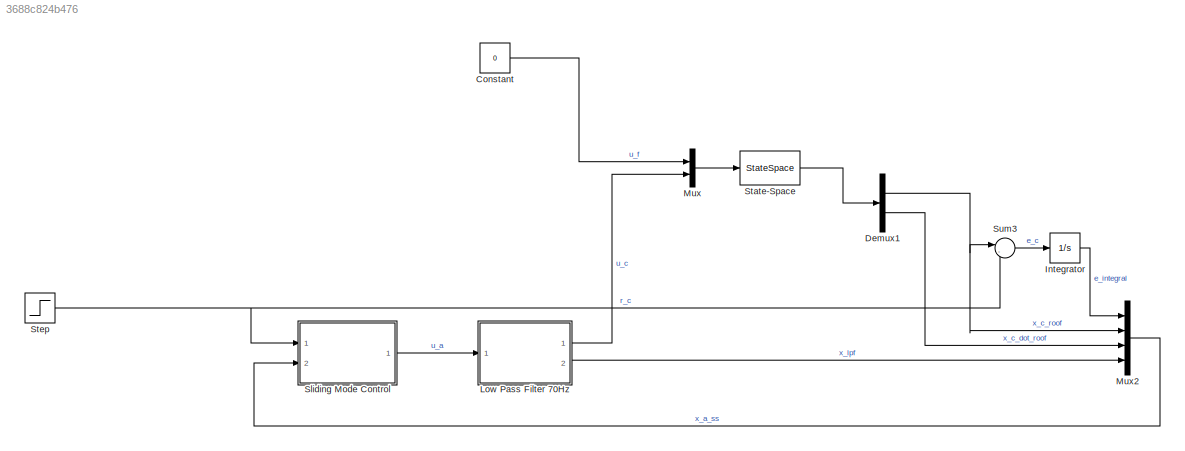
MODEL slx_3688c824b476
KIND model
CONFIG AbsTol = auto
CONFIG FixedStep = auto
CONFIG MaxStep = auto
CONFIG MinStep = auto
CONFIG RelTol = 1e-3
CONFIG SampleTimeConstraint = Unconstrained
CONFIG Solver = VariableStepAuto
CONFIG SolverMode = Auto
CONFIG SolverName = VariableStepAuto
CONFIG StartTime = 0.0
CONFIG StopTime = 10.0
BLOCK [Constant] Constant
  Value = 0
BLOCK [Demux] Demux1
  DisplayOption = bar
  Outputs = 2
  Ports = [1, 2]
BLOCK [Integrator] Integrator
  Ports = [1, 1]
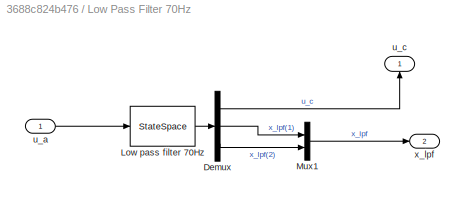
BLOCK [SubSystem] Low Pass Filter 70Hz
  Ports = [1, 2]
  RequestExecContextInheritance = off
  Variant = off
BLOCK [Demux] Low Pass Filter 70Hz/Demux
  DisplayOption = bar
  Outputs = 3
  Ports = [1, 3]
BLOCK [StateSpace] Low Pass Filter 70Hz/Low pass filter 70Hz
  A = A_lpf
  B = B_lpf
  C = [C_lpf;1 0;0 1]
  D = [0;0;0]
  Ports = [1, 1]
  X0 = 0
BLOCK [Mux] Low Pass Filter 70Hz/Mux1
  Description = x_lpf
  DisplayOption = bar
  Inputs = 2
  Ports = [2, 1]
BLOCK [Inport] Low Pass Filter 70Hz/u_a
  IconDisplay = Port number
BLOCK [Outport] Low Pass Filter 70Hz/u_c
  IconDisplay = Port number
BLOCK [Outport] Low Pass Filter 70Hz/x_lpf
  IconDisplay = Port number
  Port = 2
BLOCK [Mux] Mux
  DisplayOption = bar
  Inputs = 2
  Ports = [2, 1]
BLOCK [Mux] Mux2
  DisplayOption = bar
  Ports = [4, 1]
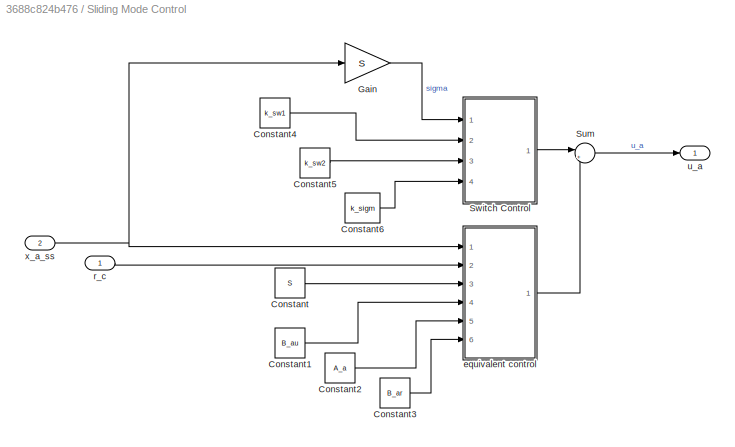
BLOCK [SubSystem] Sliding Mode Control
  Ports = [2, 1]
  RequestExecContextInheritance = off
  Variant = off
BLOCK [Constant] Sliding Mode Control/Constant
  Value = S
  VectorParams1D = off
BLOCK [Constant] Sliding Mode Control/Constant1
  Value = B_au
  VectorParams1D = off
BLOCK [Constant] Sliding Mode Control/Constant2
  Value = A_a
  VectorParams1D = off
BLOCK [Constant] Sliding Mode Control/Constant3
  Value = B_ar
  VectorParams1D = off
BLOCK [Constant] Sliding Mode Control/Constant4
  Value = k_sw1
BLOCK [Constant] Sliding Mode Control/Constant5
  Value = k_sw2
BLOCK [Constant] Sliding Mode Control/Constant6
  Value = k_sigm
BLOCK [Gain] Sliding Mode Control/Gain
  Gain = S
  Multiplication = Matrix(K*u)
  OutDataTypeStr = Inherit: Inherit via internal rule
  ParamDataTypeStr = Inherit: Inherit via internal rule
  SaturateOnIntegerOverflow = off
BLOCK [Sum] Sliding Mode Control/Sum
  IconShape = round
  InputSameDT = off
  Inputs = |++
  OutDataTypeStr = Inherit: Inherit via internal rule
  Ports = [2, 1]
  SaturateOnIntegerOverflow = off
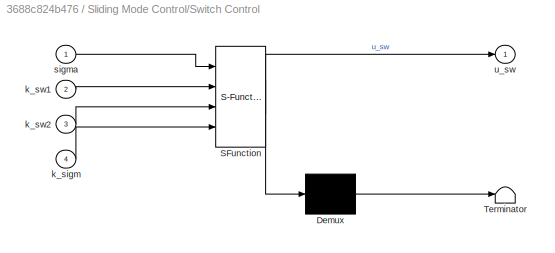
BLOCK [SubSystem] Sliding Mode Control/Switch Control
  ErrorFcn = Stateflow.Translate.translate
  PermitHierarchicalResolution = ExplicitOnly
  Ports = [4, 1]
  RequestExecContextInheritance = off
  SFBlockType = MATLAB Function
  TreatAsAtomicUnit = on
  Variant = off
BLOCK [Demux] Sliding Mode Control/Switch Control/ Demux 
  Outputs = 1
  Ports = [1, 1]
BLOCK [S-Function] Sliding Mode Control/Switch Control/ SFunction 
  EnableBusSupport = on
  FunctionName = sf_sfun
  PortCounts = [4 2]
  Ports = [4, 2]
  SFunctionDeploymentMode = off
  Tag = Stateflow S-Function tf_rc_xc 1
BLOCK [Terminator] Sliding Mode Control/Switch Control/ Terminator 
BLOCK [Inport] Sliding Mode Control/Switch Control/k_sigm
  IconDisplay = Port number
  Port = 4
BLOCK [Inport] Sliding Mode Control/Switch Control/k_sw1
  IconDisplay = Port number
  Port = 2
BLOCK [Inport] Sliding Mode Control/Switch Control/k_sw2
  IconDisplay = Port number
  Port = 3
BLOCK [Inport] Sliding Mode Control/Switch Control/sigma
  IconDisplay = Port number
BLOCK [Outport] Sliding Mode Control/Switch Control/u_sw
  IconDisplay = Port number
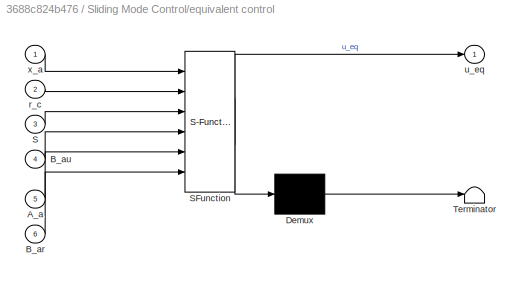
BLOCK [SubSystem] Sliding Mode Control/equivalent control
  ErrorFcn = Stateflow.Translate.translate
  PermitHierarchicalResolution = ExplicitOnly
  Ports = [6, 1]
  RequestExecContextInheritance = off
  SFBlockType = MATLAB Function
  TreatAsAtomicUnit = on
  Variant = off
BLOCK [Demux] Sliding Mode Control/equivalent control/ Demux 
  Outputs = 1
  Ports = [1, 1]
BLOCK [S-Function] Sliding Mode Control/equivalent control/ SFunction 
  EnableBusSupport = on
  FunctionName = sf_sfun
  PortCounts = [6 2]
  Ports = [6, 2]
  SFunctionDeploymentMode = off
  Tag = Stateflow S-Function tf_rc_xc 2
BLOCK [Terminator] Sliding Mode Control/equivalent control/ Terminator 
BLOCK [Inport] Sliding Mode Control/equivalent control/A_a
  IconDisplay = Port number
  Port = 5
BLOCK [Inport] Sliding Mode Control/equivalent control/B_ar
  IconDisplay = Port number
  Port = 6
BLOCK [Inport] Sliding Mode Control/equivalent control/B_au
  IconDisplay = Port number
  Port = 4
BLOCK [Inport] Sliding Mode Control/equivalent control/S
  IconDisplay = Port number
  Port = 3
BLOCK [Inport] Sliding Mode Control/equivalent control/r_c
  IconDisplay = Port number
  Port = 2
BLOCK [Outport] Sliding Mode Control/equivalent control/u_eq
  IconDisplay = Port number
BLOCK [Inport] Sliding Mode Control/equivalent control/x_a
  IconDisplay = Port number
BLOCK [Inport] Sliding Mode Control/r_c
  IconDisplay = Port number
BLOCK [Outport] Sliding Mode Control/u_a
  IconDisplay = Port number
BLOCK [Inport] Sliding Mode Control/x_a_ss
  IconDisplay = Port number
  Port = 2
BLOCK [StateSpace] State-Space
  A = [0, 1, 0, 0; -k/m_f, -c/m_f, k/m_f, c/m_f;0, 0, 0, 1; 0, 0, 0, 0]
  B = [0, 0; k_af/m_f, 0;0, 0; 0, k_ac/m_c];
  C = [0 0 1 0;0 0 0 1]
  D = [0 0;0 0]
  Ports = [1, 1]
  X0 = 0
BLOCK [Step] Step
  SampleTime = 0
BLOCK [Sum] Sum3
  IconShape = round
  InputSameDT = off
  Inputs = |-+
  OutDataTypeStr = Inherit: Inherit via internal rule
  Ports = [2, 1]
  SaturateOnIntegerOverflow = off
LINE Constant:1 -> Mux:1
NET Demux1:1 -> Mux2:2, Sum3:1
LINE Demux1:2 -> Mux2:3
LINE Integrator:1 -> Mux2:1
LINE Low Pass Filter 70Hz/Demux:1 -> Low Pass Filter 70Hz/u_c:1
LINE Low Pass Filter 70Hz/Demux:2 -> Low Pass Filter 70Hz/Mux1:1
LINE Low Pass Filter 70Hz/Demux:3 -> Low Pass Filter 70Hz/Mux1:2
LINE Low Pass Filter 70Hz/Low pass filter 70Hz:1 -> Low Pass Filter 70Hz/Demux:1
LINE Low Pass Filter 70Hz/Mux1:1 -> Low Pass Filter 70Hz/x_lpf:1
LINE Low Pass Filter 70Hz/u_a:1 -> Low Pass Filter 70Hz/Low pass filter 70Hz:1
LINE Low Pass Filter 70Hz:1 -> Mux:2
LINE Low Pass Filter 70Hz:2 -> Mux2:4
LINE Mux2:1 -> Sliding Mode Control:2
LINE Mux:1 -> State-Space:1
LINE Sliding Mode Control/Constant1:1 -> Sliding Mode Control/equivalent control:4
LINE Sliding Mode Control/Constant2:1 -> Sliding Mode Control/equivalent control:5
LINE Sliding Mode Control/Constant3:1 -> Sliding Mode Control/equivalent control:6
LINE Sliding Mode Control/Constant4:1 -> Sliding Mode Control/Switch Control:2
LINE Sliding Mode Control/Constant5:1 -> Sliding Mode Control/Switch Control:3
LINE Sliding Mode Control/Constant6:1 -> Sliding Mode Control/Switch Control:4
LINE Sliding Mode Control/Constant:1 -> Sliding Mode Control/equivalent control:3
LINE Sliding Mode Control/Gain:1 -> Sliding Mode Control/Switch Control:1
LINE Sliding Mode Control/Sum:1 -> Sliding Mode Control/u_a:1
LINE Sliding Mode Control/Switch Control:1 -> Sliding Mode Control/Sum:1
LINE Sliding Mode Control/equivalent control:1 -> Sliding Mode Control/Sum:2
LINE Sliding Mode Control/r_c:1 -> Sliding Mode Control/equivalent control:2
NET Sliding Mode Control/x_a_ss:1 -> Sliding Mode Control/Gain:1, Sliding Mode Control/equivalent control:1
LINE Sliding Mode Control:1 -> Low Pass Filter 70Hz:1
LINE State-Space:1 -> Demux1:1
NET Step:1 -> Sliding Mode Control:1, Sum3:2
LINE Sum3:1 -> Integrator:1
note: NET lines group one-source signal fan-out (src -> all destinations, sorted); 1:1 wires keep LINE
CHART Sliding Mode Control/Switch Control states=1 transitions=1
  STATE_LABEL 'eML_blk_kernel()'
  STATE_LABEL 'SCRIPT:\nfunction u_sw = fcn(sigma, k_sw1, k_sw2, k_sigm)\n\nu_sw = (-k_sw1*sign(sigma)-k_sw2*sigma).*abs(2./(1+exp(-k_sigm*sigma))-1);'
CHART Sliding Mode Control/equivalent control states=1 transitions=1
  STATE_LABEL 'eML_blk_kernel()'
  STATE_LABEL 'SCRIPT:\nfunction u_eq = fcn(x_a, r_c, S, B_au, A_a, B_ar)\n\nu_eq = -(S*B_au)\\(S*A_a*x_a+S*B_ar*r_c);'
